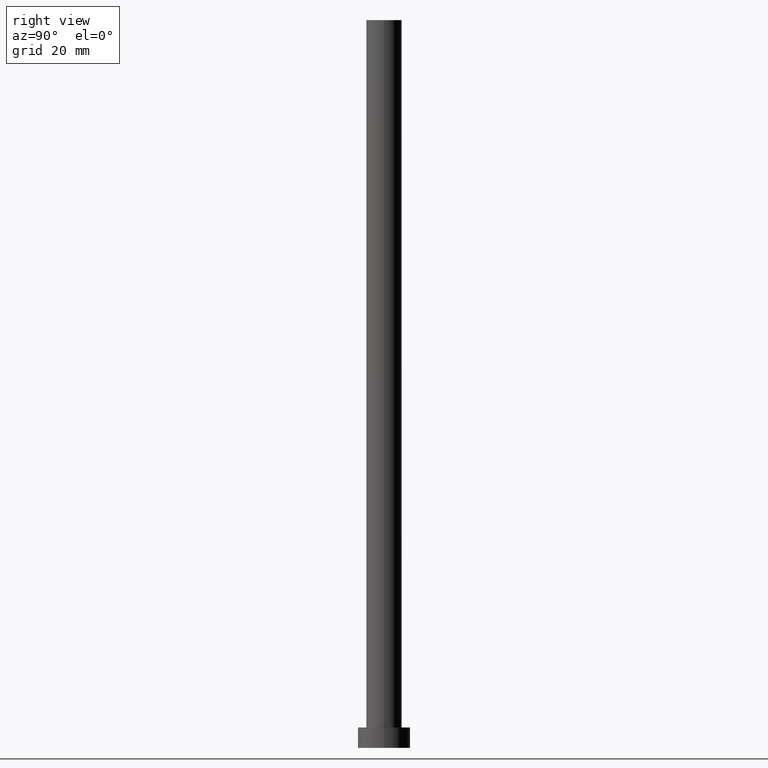
[diagram: clean part render]
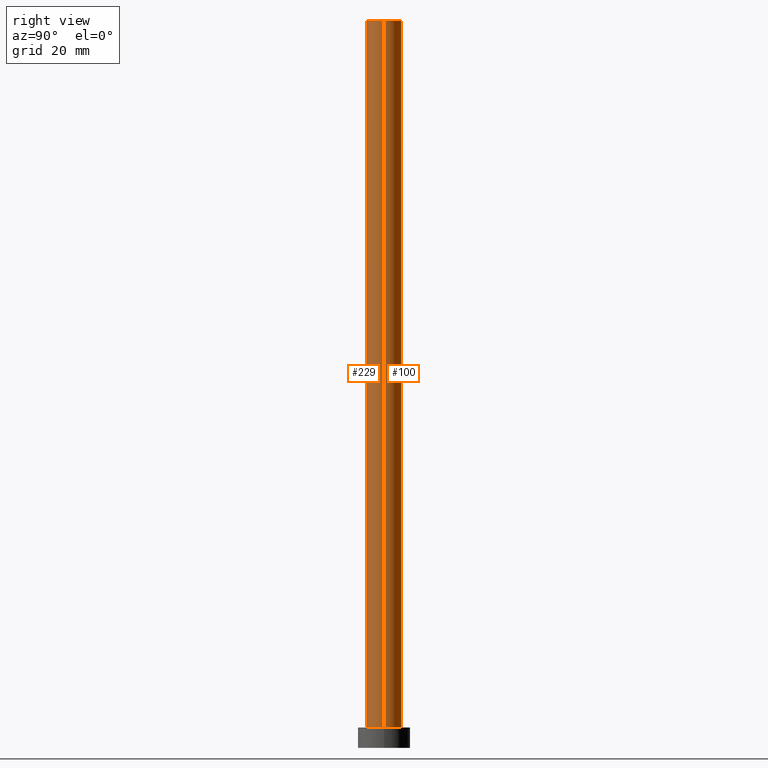
[diagram: same view with one multi-face feature highlighted, each face labeled with its STEP entity id]
A machine part, right view. The highlighted faces form ONE feature: a constant-radius fillet chain: 2 tangent blend faces with common blend radius 6.1 mm. The faces share edges in the B-rep.
Their STEP definitions:
[1] entity #229 (Cylinder):
#6 = AXIS2_PLACEMENT_3D ( 'NONE', #153, #135, #211 ) ;
#8 = DIRECTION ( 'NONE',  ( -0.000000000000000000, -0.000000000000000000, -1.000000000000000000 ) ) ;
#12 = LINE ( 'NONE', #112, #178 ) ;
#15 = CARTESIAN_POINT ( 'NONE',  ( 0.000000000000000000, 0.000000000000000000, 250.0000000000000000 ) ) ;
#28 = DIRECTION ( 'NONE',  ( 0.000000000000000000, 0.000000000000000000, 1.000000000000000000 ) ) ;
#36 = VERTEX_POINT ( 'NONE', #110 ) ;
#45 = EDGE_CURVE ( 'NONE', #166, #251, #230, .T. ) ;
#51 = AXIS2_PLACEMENT_3D ( 'NONE', #191, #8, #102 ) ;
#52 = EDGE_CURVE ( 'NONE', #251, #36, #158, .T. ) ;
#83 = CARTESIAN_POINT ( 'NONE',  ( -6.099999999999999645, 0.000000000000000000, 7.000000000000000000 ) ) ;
#87 = CARTESIAN_POINT ( 'NONE',  ( -6.099999999999999645, 0.000000000000000000, 250.0000000000000000 ) ) ;
#101 = CYLINDRICAL_SURFACE ( 'NONE', #51, 6.099999999999999645 ) ;
#102 = DIRECTION ( 'NONE',  ( -1.000000000000000000, 0.000000000000000000, 0.000000000000000000 ) ) ;
#106 = EDGE_CURVE ( 'NONE', #148, #36, #122, .T. ) ;
#108 = ORIENTED_EDGE ( 'NONE', *, *, #45, .F. ) ;
#110 = CARTESIAN_POINT ( 'NONE',  ( 6.099999999999999645, 7.470345474798854293E-16, 7.000000000000000000 ) ) ;
#112 = CARTESIAN_POINT ( 'NONE',  ( -6.099999999999999645, 0.000000000000000000, 250.0000000000000000 ) ) ;
#120 = ORIENTED_EDGE ( 'NONE', *, *, #106, .T. ) ;
#122 = CIRCLE ( 'NONE', #6, 6.099999999999999645 ) ;
#131 = CARTESIAN_POINT ( 'NONE',  ( 6.099999999999999645, 7.470345474798854293E-16, 250.0000000000000000 ) ) ;
#134 = EDGE_CURVE ( 'NONE', #166, #148, #12, .T. ) ;
#135 = DIRECTION ( 'NONE',  ( 0.000000000000000000, 0.000000000000000000, 1.000000000000000000 ) ) ;
#136 = FACE_OUTER_BOUND ( 'NONE', #217, .T. ) ;
#148 = VERTEX_POINT ( 'NONE', #83 ) ;
#153 = CARTESIAN_POINT ( 'NONE',  ( 0.000000000000000000, 0.000000000000000000, 7.000000000000000000 ) ) ;
#154 = DIRECTION ( 'NONE',  ( 1.000000000000000000, 0.000000000000000000, 0.000000000000000000 ) ) ;
#158 = LINE ( 'NONE', #246, #227 ) ;
#166 = VERTEX_POINT ( 'NONE', #87 ) ;
#178 = VECTOR ( 'NONE', #226, 1000.000000000000000 ) ;
#184 = ORIENTED_EDGE ( 'NONE', *, *, #52, .F. ) ;
#191 = CARTESIAN_POINT ( 'NONE',  ( 0.000000000000000000, 0.000000000000000000, 250.0000000000000000 ) ) ;
#194 = DIRECTION ( 'NONE',  ( -0.000000000000000000, -0.000000000000000000, -1.000000000000000000 ) ) ;
#211 = DIRECTION ( 'NONE',  ( 1.000000000000000000, 0.000000000000000000, 0.000000000000000000 ) ) ;
#212 = ORIENTED_EDGE ( 'NONE', *, *, #134, .T. ) ;
#217 = EDGE_LOOP ( 'NONE', ( #184, #108, #212, #120 ) ) ;
#226 = DIRECTION ( 'NONE',  ( -0.000000000000000000, -0.000000000000000000, -1.000000000000000000 ) ) ;
#227 = VECTOR ( 'NONE', #194, 1000.000000000000000 ) ;
#229 = ADVANCED_FACE ( 'NONE', ( #136 ), #101, .T. ) ;
#230 = CIRCLE ( 'NONE', #250, 6.099999999999999645 ) ;
#246 = CARTESIAN_POINT ( 'NONE',  ( 6.099999999999999645, 7.470345474798854293E-16, 250.0000000000000000 ) ) ;
#250 = AXIS2_PLACEMENT_3D ( 'NONE', #15, #28, #154 ) ;
#251 = VERTEX_POINT ( 'NONE', #131 ) ;
[2] entity #100 (Cylinder):
#12 = LINE ( 'NONE', #112, #178 ) ;
#18 = CYLINDRICAL_SURFACE ( 'NONE', #204, 6.099999999999999645 ) ;
#20 = EDGE_CURVE ( 'NONE', #36, #148, #130, .T. ) ;
#36 = VERTEX_POINT ( 'NONE', #110 ) ;
#50 = FACE_OUTER_BOUND ( 'NONE', #118, .T. ) ;
#52 = EDGE_CURVE ( 'NONE', #251, #36, #158, .T. ) ;
#53 = DIRECTION ( 'NONE',  ( -0.000000000000000000, -0.000000000000000000, -1.000000000000000000 ) ) ;
#56 = ORIENTED_EDGE ( 'NONE', *, *, #157, .F. ) ;
#61 = ORIENTED_EDGE ( 'NONE', *, *, #20, .T. ) ;
#83 = CARTESIAN_POINT ( 'NONE',  ( -6.099999999999999645, 0.000000000000000000, 7.000000000000000000 ) ) ;
#87 = CARTESIAN_POINT ( 'NONE',  ( -6.099999999999999645, 0.000000000000000000, 250.0000000000000000 ) ) ;
#88 = CARTESIAN_POINT ( 'NONE',  ( 0.000000000000000000, 0.000000000000000000, 7.000000000000000000 ) ) ;
#92 = AXIS2_PLACEMENT_3D ( 'NONE', #88, #172, #150 ) ;
#96 = ORIENTED_EDGE ( 'NONE', *, *, #134, .F. ) ;
#100 = ADVANCED_FACE ( 'NONE', ( #50 ), #18, .T. ) ;
#110 = CARTESIAN_POINT ( 'NONE',  ( 6.099999999999999645, 7.470345474798854293E-16, 7.000000000000000000 ) ) ;
#112 = CARTESIAN_POINT ( 'NONE',  ( -6.099999999999999645, 0.000000000000000000, 250.0000000000000000 ) ) ;
#118 = EDGE_LOOP ( 'NONE', ( #56, #144, #61, #96 ) ) ;
#130 = CIRCLE ( 'NONE', #92, 6.099999999999999645 ) ;
#131 = CARTESIAN_POINT ( 'NONE',  ( 6.099999999999999645, 7.470345474798854293E-16, 250.0000000000000000 ) ) ;
#133 = DIRECTION ( 'NONE',  ( 1.000000000000000000, 0.000000000000000000, 0.000000000000000000 ) ) ;
#134 = EDGE_CURVE ( 'NONE', #166, #148, #12, .T. ) ;
#140 = DIRECTION ( 'NONE',  ( -1.000000000000000000, 0.000000000000000000, 0.000000000000000000 ) ) ;
#144 = ORIENTED_EDGE ( 'NONE', *, *, #52, .T. ) ;
#148 = VERTEX_POINT ( 'NONE', #83 ) ;
#150 = DIRECTION ( 'NONE',  ( 1.000000000000000000, 0.000000000000000000, 0.000000000000000000 ) ) ;
#157 = EDGE_CURVE ( 'NONE', #251, #166, #207, .T. ) ;
#158 = LINE ( 'NONE', #246, #227 ) ;
#166 = VERTEX_POINT ( 'NONE', #87 ) ;
#172 = DIRECTION ( 'NONE',  ( 0.000000000000000000, 0.000000000000000000, 1.000000000000000000 ) ) ;
#178 = VECTOR ( 'NONE', #226, 1000.000000000000000 ) ;
#194 = DIRECTION ( 'NONE',  ( -0.000000000000000000, -0.000000000000000000, -1.000000000000000000 ) ) ;
#201 = DIRECTION ( 'NONE',  ( 0.000000000000000000, 0.000000000000000000, 1.000000000000000000 ) ) ;
#204 = AXIS2_PLACEMENT_3D ( 'NONE', #234, #53, #140 ) ;
#207 = CIRCLE ( 'NONE', #236, 6.099999999999999645 ) ;
#226 = DIRECTION ( 'NONE',  ( -0.000000000000000000, -0.000000000000000000, -1.000000000000000000 ) ) ;
#227 = VECTOR ( 'NONE', #194, 1000.000000000000000 ) ;
#234 = CARTESIAN_POINT ( 'NONE',  ( 0.000000000000000000, 0.000000000000000000, 250.0000000000000000 ) ) ;
#236 = AXIS2_PLACEMENT_3D ( 'NONE', #245, #201, #133 ) ;
#245 = CARTESIAN_POINT ( 'NONE',  ( 0.000000000000000000, 0.000000000000000000, 250.0000000000000000 ) ) ;
#246 = CARTESIAN_POINT ( 'NONE',  ( 6.099999999999999645, 7.470345474798854293E-16, 250.0000000000000000 ) ) ;
#251 = VERTEX_POINT ( 'NONE', #131 ) ;